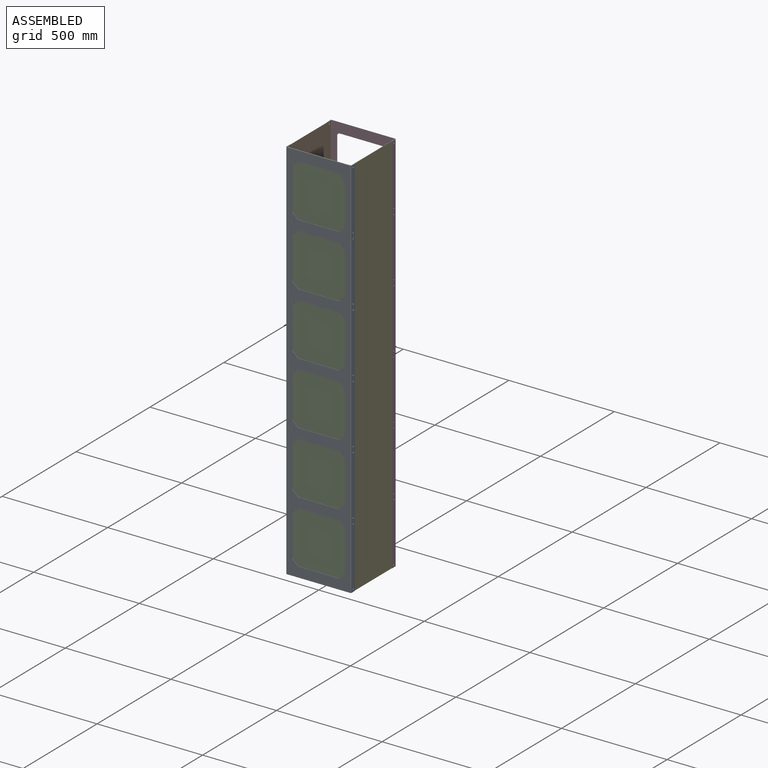
[diagram: assembled view]
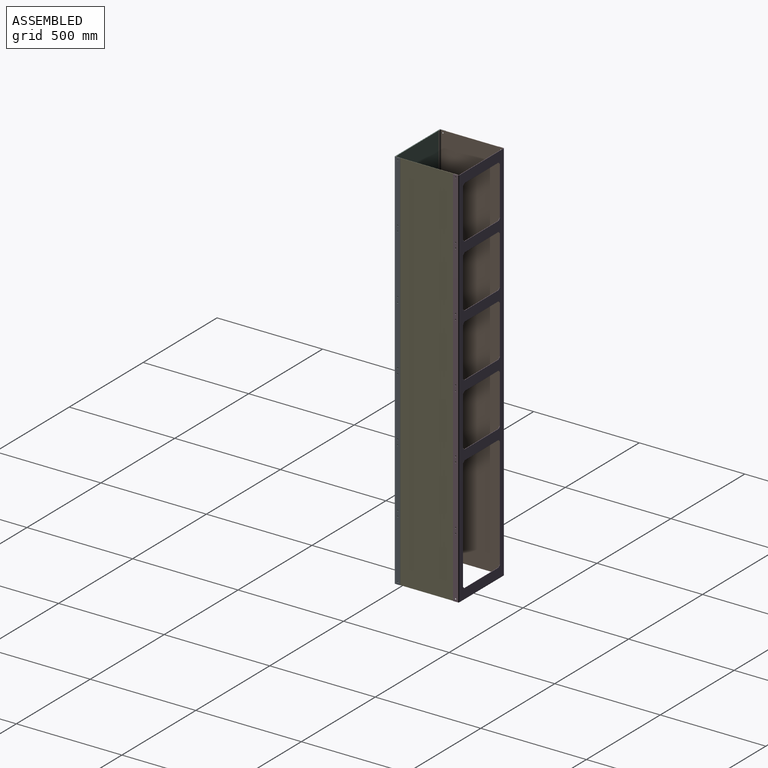
[diagram: assembled view, second angle]
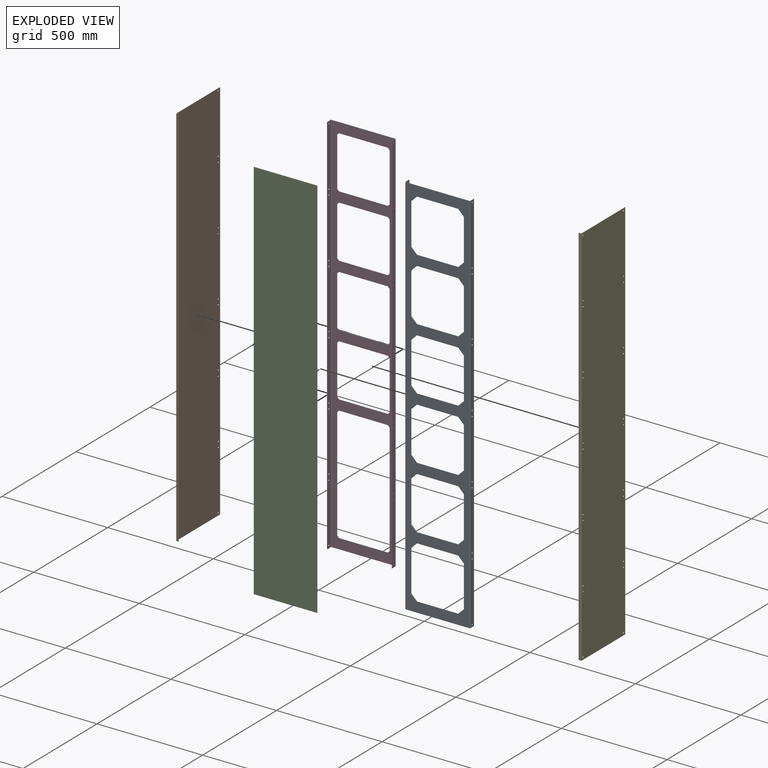
[diagram: exploded view]
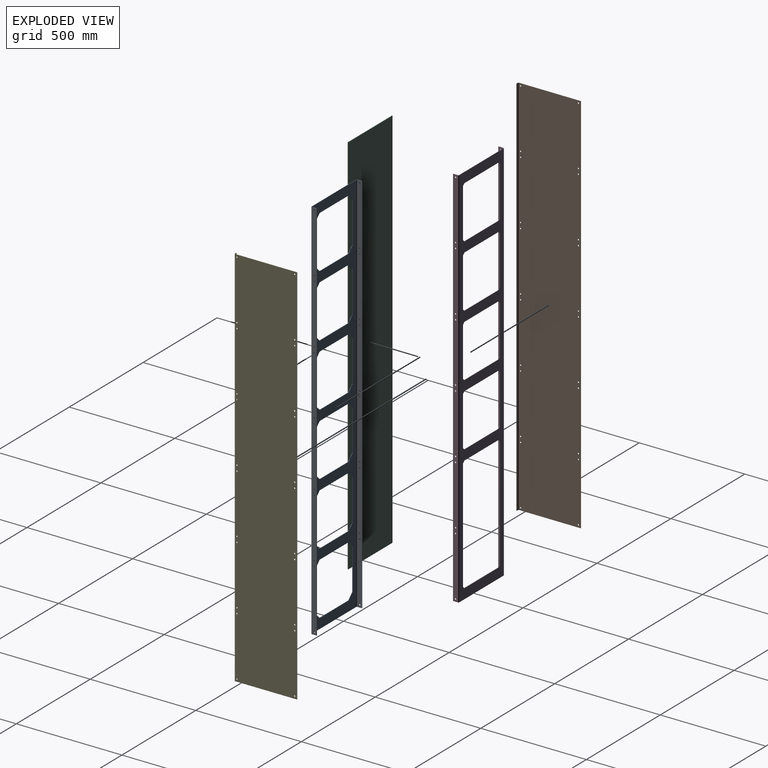
[diagram: exploded view, second angle]
ASSEMBLY  parts=5 mates=8
PART A: 94 faces, bbox 308x27x1828.8 mm
  f0: plane 300.23x1.59mm, normal (0,0,-1), area 476.6mm2, adj f50,f51,f69,f90
  f1: plane 195.55x1.59mm, normal (0,0,-1), area 310.4mm2, adj f2,f48,f50,f51
  f2: plane 26.94x26.94mm, normal (-0.71,0,-0.71), area 60.5mm2, adj f1,f3,f50,f51
  f3: plane 195.55x1.59mm, normal (-1,0,0), area 310.4mm2, adj f2,f4,f50,f51
  f4: plane 26.94x26.94mm, normal (-0.71,0,0.71), area 60.5mm2, adj f3,f5,f50,f51
  f5: plane 195.55x1.59mm, normal (0,0,1), area 310.4mm2, adj f4,f6,f50,f51
  f6: plane 26.94x26.94mm, normal (0.71,0,0.71), area 60.5mm2, adj f5,f7,f50,f51
  f7: plane 195.55x1.59mm, normal (1,0,0), area 310.4mm2, adj f6,f48,f50,f51
  f8: plane 195.55x1.59mm, normal (0,0,-1), area 310.4mm2, adj f9,f47,f50,f51
  f9: plane 26.94x26.94mm, normal (-0.71,0,-0.71), area 60.5mm2, adj f8,f10,f50,f51
  f10: plane 195.55x1.59mm, normal (-1,0,0), area 310.4mm2, adj f9,f11,f50,f51
  f11: plane 26.94x26.94mm, normal (-0.71,0,0.71), area 60.5mm2, adj f10,f12,f50,f51
  f12: plane 195.55x1.59mm, normal (0,0,1), area 310.4mm2, adj f11,f13,f50,f51
  f13: plane 26.94x26.94mm, normal (0.71,0,0.71), area 60.5mm2, adj f12,f14,f50,f51
  f14: plane 195.55x1.59mm, normal (1,0,0), area 310.4mm2, adj f13,f47,f50,f51
  f15: plane 195.55x1.59mm, normal (0,0,-1), area 310.4mm2, adj f16,f46,f50,f51
  f16: plane 26.94x26.94mm, normal (-0.71,0,-0.71), area 60.5mm2, adj f15,f17,f50,f51
  f17: plane 195.55x1.59mm, normal (-1,0,0), area 310.4mm2, adj f16,f18,f50,f51
  f18: plane 26.94x26.94mm, normal (-0.71,0,0.71), area 60.5mm2, adj f17,f19,f50,f51
  f19: plane 195.55x1.59mm, normal (0,0,1), area 310.4mm2, adj f18,f20,f50,f51
  f20: plane 26.94x26.94mm, normal (0.71,0,0.71), area 60.5mm2, adj f19,f21,f50,f51
  f21: plane 195.55x1.59mm, normal (1,0,0), area 310.4mm2, adj f20,f46,f50,f51
  f22: plane 195.55x1.59mm, normal (0,0,-1), area 310.4mm2, adj f23,f45,f50,f51
  f23: plane 26.94x26.94mm, normal (-0.71,0,-0.71), area 60.5mm2, adj f22,f24,f50,f51
  f24: plane 195.55x1.59mm, normal (-1,0,0), area 310.4mm2, adj f23,f25,f50,f51
  f25: plane 26.94x26.94mm, normal (-0.71,0,0.71), area 60.5mm2, adj f24,f26,f50,f51
  f26: plane 195.55x1.59mm, normal (0,0,1), area 310.4mm2, adj f25,f27,f50,f51
  f27: plane 26.94x26.94mm, normal (0.71,0,0.71), area 60.5mm2, adj f26,f28,f50,f51
  f28: plane 195.55x1.59mm, normal (1,0,0), area 310.4mm2, adj f27,f45,f50,f51
  f29: plane 195.55x1.59mm, normal (0,0,-1), area 310.4mm2, adj f30,f44,f50,f51
  f30: plane 26.94x26.94mm, normal (-0.71,0,-0.71), area 60.5mm2, adj f29,f31,f50,f51
  f31: plane 195.55x1.59mm, normal (-1,0,0), area 310.4mm2, adj f30,f32,f50,f51
  f32: plane 26.94x26.94mm, normal (-0.71,0,0.71), area 60.5mm2, adj f31,f33,f50,f51
  f33: plane 195.55x1.59mm, normal (0,0,1), area 310.4mm2, adj f32,f34,f50,f51
  f34: plane 26.94x26.94mm, normal (0.71,0,0.71), area 60.5mm2, adj f33,f35,f50,f51
  f35: plane 195.55x1.59mm, normal (1,0,0), area 310.4mm2, adj f34,f44,f50,f51
  f36: plane 26.94x26.94mm, normal (-0.71,0,-0.71), area 60.5mm2, adj f37,f43,f50,f51
  f37: plane 195.55x1.59mm, normal (-1,0,0), area 310.4mm2, adj f36,f38,f50,f51
  f38: plane 26.94x26.94mm, normal (-0.71,0,0.71), area 60.5mm2, adj f37,f39,f50,f51
  f39: plane 195.55x1.59mm, normal (0,0,1), area 310.4mm2, adj f38,f40,f50,f51
  f40: plane 26.94x26.94mm, normal (0.71,0,0.71), area 60.5mm2, adj f39,f41,f50,f51
  f41: plane 195.55x1.59mm, normal (1,0,0), area 310.4mm2, adj f40,f42,f50,f51
  f42: plane 26.94x26.94mm, normal (0.71,0,-0.71), area 60.5mm2, adj f41,f43,f50,f51
  f43: plane 195.55x1.59mm, normal (0,0,-1), area 310.4mm2, adj f36,f42,f50,f51
  f44: plane 26.94x26.94mm, normal (0.71,0,-0.71), area 60.5mm2, adj f29,f35,f50,f51
  f45: plane 26.94x26.94mm, normal (0.71,0,-0.71), area 60.5mm2, adj f22,f28,f50,f51
  f46: plane 26.94x26.94mm, normal (0.71,0,-0.71), area 60.5mm2, adj f15,f21,f50,f51
  f47: plane 26.94x26.94mm, normal (0.71,0,-0.71), area 60.5mm2, adj f8,f14,f50,f51
  f48: plane 26.94x26.94mm, normal (0.71,0,-0.71), area 60.5mm2, adj f1,f7,f50,f51
  f49: plane 300.23x1.59mm, normal (0,0,1), area 476.6mm2, adj f50,f51,f70,f91
  f50: plane 1828.8x300.23mm, normal (0,-1,0), area 184480.7mm2, adj f0,f1,f2,f3,f4,f5,f6,f7
  f51: plane 1828.8x300.23mm, normal (0,1,0), area 184480.7mm2, adj f0,f1,f2,f3,f4,f5,f6,f7
  f52: plane 23.11x1.59mm, normal (0,0,-1), area 36.7mm2, adj f53,f67,f68,f69
  f53: plane 1828.8x1.59mm, normal (0,1,0), area 2903.2mm2, adj f52,f66,f67,f68
  f54: cylinder r=3.17mm len=6.35mm, axis (1,0,0), area 31.7mm2, adj f67,f68
  f55: cylinder r=3.17mm len=6.35mm, axis (1,0,0), area 31.7mm2, adj f67,f68
  f56: cylinder r=3.17mm len=6.35mm, axis (1,0,0), area 31.7mm2, adj f67,f68
  f57: cylinder r=3.17mm len=6.35mm, axis (1,0,0), area 31.7mm2, adj f67,f68
  f58: cylinder r=3.17mm len=6.35mm, axis (1,0,0), area 31.7mm2, adj f67,f68
  f59: cylinder r=3.17mm len=6.35mm, axis (1,0,0), area 31.7mm2, adj f67,f68
  f60: cylinder r=3.17mm len=6.35mm, axis (1,0,0), area 31.7mm2, adj f67,f68
  f61: cylinder r=3.17mm len=6.35mm, axis (1,0,0), area 31.7mm2, adj f67,f68
  f62: cylinder r=3.17mm len=6.35mm, axis (1,0,0), area 31.7mm2, adj f67,f68
  f63: cylinder r=3.17mm len=6.35mm, axis (1,0,0), area 31.7mm2, adj f67,f68
  f64: cylinder r=3.17mm len=6.35mm, axis (1,0,0), area 31.7mm2, adj f67,f68
  f65: cylinder r=3.17mm len=6.35mm, axis (1,0,0), area 31.7mm2, adj f67,f68
  f66: plane 23.11x1.59mm, normal (0,0,1), area 36.7mm2, adj f53,f67,f68,f70
  f67: plane 1828.8x23.11mm, normal (1,0,0), area 41890.9mm2, adj f52,f53,f54,f55,f56,f57,f58,f59
  f68: plane 1828.8x23.11mm, normal (-1,0,0), area 41890.9mm2, adj f52,f53,f54,f55,f56,f57,f58,f59
  f69: plane 3.87x3.87mm, normal (0,0,-1), area 7.7mm2, adj f0,f52,f71,f72
  f70: plane 3.87x3.87mm, normal (0,0,1), area 7.7mm2, adj f49,f66,f71,f72
  f71: cylinder r=3.87mm len=1828.8mm, axis (0,0,-1), area 11127.3mm2, adj f50,f67,f69,f70
  f72: cylinder r=2.29mm len=1828.8mm, axis (0,0,-1), area 6566.9mm2, adj f51,f68,f69,f70
  f73: plane 23.11x1.59mm, normal (0,0,1), area 36.7mm2, adj f74,f88,f89,f91
  f74: plane 1828.8x1.59mm, normal (0,1,0), area 2903.2mm2, adj f73,f87,f88,f89
  f75: cylinder r=3.17mm len=6.35mm, axis (1,0,0), area 31.7mm2, adj f88,f89
  f76: cylinder r=3.17mm len=6.35mm, axis (1,0,0), area 31.7mm2, adj f88,f89
  f77: cylinder r=3.17mm len=6.35mm, axis (1,0,0), area 31.7mm2, adj f88,f89
  f78: cylinder r=3.17mm len=6.35mm, axis (1,0,0), area 31.7mm2, adj f88,f89
  f79: cylinder r=3.17mm len=6.35mm, axis (1,0,0), area 31.7mm2, adj f88,f89
  f80: cylinder r=3.17mm len=6.35mm, axis (1,0,0), area 31.7mm2, adj f88,f89
  f81: cylinder r=3.17mm len=6.35mm, axis (1,0,0), area 31.7mm2, adj f88,f89
  f82: cylinder r=3.17mm len=6.35mm, axis (1,0,0), area 31.7mm2, adj f88,f89
  f83: cylinder r=3.17mm len=6.35mm, axis (1,0,0), area 31.7mm2, adj f88,f89
  f84: cylinder r=3.17mm len=6.35mm, axis (1,0,0), area 31.7mm2, adj f88,f89
  f85: cylinder r=3.17mm len=6.35mm, axis (1,0,0), area 31.7mm2, adj f88,f89
  f86: cylinder r=3.17mm len=6.35mm, axis (1,0,0), area 31.7mm2, adj f88,f89
  f87: plane 23.11x1.59mm, normal (0,0,-1), area 36.7mm2, adj f74,f88,f89,f90
  f88: plane 1828.8x23.11mm, normal (-1,0,0), area 41890.9mm2, adj f73,f74,f75,f76,f77,f78,f79,f80
  f89: plane 1828.8x23.11mm, normal (1,0,0), area 41890.9mm2, adj f73,f74,f75,f76,f77,f78,f79,f80
  f90: plane 3.87x3.87mm, normal (0,0,-1), area 7.7mm2, adj f0,f87,f92,f93
  f91: plane 3.87x3.87mm, normal (0,0,1), area 7.7mm2, adj f49,f73,f92,f93
  f92: cylinder r=3.87mm len=1828.8mm, axis (0,0,-1), area 11127.3mm2, adj f50,f88,f90,f91
  f93: cylinder r=2.29mm len=1828.8mm, axis (0,0,-1), area 6566.9mm2, adj f51,f89,f90,f91
PART B: 38 faces, bbox 297.1x12.7x1828.8 mm
  f0: plane 293.18x1.59mm, normal (0,0,-1), area 465.4mm2, adj f26,f27,f28,f34
  f1: plane 293.18x1.59mm, normal (0,0,1), area 465.4mm2, adj f26,f27,f28,f35
  f2: cylinder r=3.17mm len=6.35mm, axis (0,-1,0), area 31.7mm2, adj f27,f28
  f3: cylinder r=3.17mm len=6.35mm, axis (0,-1,0), area 31.7mm2, adj f27,f28
  f4: cylinder r=3.17mm len=6.35mm, axis (0,-1,0), area 31.7mm2, adj f27,f28
  f5: cylinder r=3.17mm len=6.35mm, axis (0,-1,0), area 31.7mm2, adj f27,f28
  f6: cylinder r=3.17mm len=6.35mm, axis (0,-1,0), area 31.7mm2, adj f27,f28
  f7: cylinder r=3.17mm len=6.35mm, axis (0,-1,0), area 31.7mm2, adj f27,f28
  f8: cylinder r=3.17mm len=6.35mm, axis (0,-1,0), area 31.7mm2, adj f27,f28
  f9: cylinder r=3.17mm len=6.35mm, axis (0,-1,0), area 31.7mm2, adj f27,f28
  f10: cylinder r=3.17mm len=6.35mm, axis (0,-1,0), area 31.7mm2, adj f27,f28
  f11: cylinder r=3.17mm len=6.35mm, axis (0,-1,0), area 31.7mm2, adj f27,f28
  f12: cylinder r=3.17mm len=6.35mm, axis (0,-1,0), area 31.7mm2, adj f27,f28
  f13: cylinder r=3.17mm len=6.35mm, axis (0,-1,0), area 31.7mm2, adj f27,f28
  f14: cylinder r=3.17mm len=6.35mm, axis (0,-1,0), area 31.7mm2, adj f27,f28
  f15: cylinder r=3.17mm len=6.35mm, axis (0,-1,0), area 31.7mm2, adj f27,f28
  f16: cylinder r=3.17mm len=6.35mm, axis (0,-1,0), area 31.7mm2, adj f27,f28
  f17: cylinder r=3.17mm len=6.35mm, axis (0,-1,0), area 31.7mm2, adj f27,f28
  f18: cylinder r=3.17mm len=6.35mm, axis (0,-1,0), area 31.7mm2, adj f27,f28
  f19: cylinder r=3.17mm len=6.35mm, axis (0,-1,0), area 31.7mm2, adj f27,f28
  f20: cylinder r=3.17mm len=6.35mm, axis (0,-1,0), area 31.7mm2, adj f27,f28
  f21: cylinder r=3.17mm len=6.35mm, axis (0,-1,0), area 31.7mm2, adj f27,f28
  f22: cylinder r=3.17mm len=6.35mm, axis (0,-1,0), area 31.7mm2, adj f27,f28
  f23: cylinder r=3.17mm len=6.35mm, axis (0,-1,0), area 31.7mm2, adj f27,f28
  f24: cylinder r=3.17mm len=6.35mm, axis (0,-1,0), area 31.7mm2, adj f27,f28
  f25: cylinder r=3.17mm len=6.35mm, axis (0,-1,0), area 31.7mm2, adj f27,f28
  f26: plane 1828.8x1.59mm, normal (1,0,0), area 2903.2mm2, adj f0,f1,f27,f28
  f27: plane 1828.8x293.18mm, normal (0,1,0), area 535406.6mm2, adj f0,f1,f2,f3,f4,f5,f6,f7
  f28: plane 1828.8x293.18mm, normal (0,-1,0), area 535406.6mm2, adj f0,f1,f2,f3,f4,f5,f6,f7
  f29: plane 1828.8x1.59mm, normal (0,-1,0), area 2903.2mm2, adj f30,f31,f32,f33
  f30: plane 8.83x1.59mm, normal (0,0,1), area 14mm2, adj f29,f32,f33,f35
  f31: plane 8.83x1.59mm, normal (0,0,-1), area 14mm2, adj f29,f32,f33,f34
  f32: plane 1828.8x8.83mm, normal (-1,0,0), area 16141.9mm2, adj f29,f30,f31,f36
  f33: plane 1828.8x8.83mm, normal (1,0,0), area 16141.9mm2, adj f29,f30,f31,f37
  f34: plane 3.87x3.87mm, normal (0,0,-1), area 7.7mm2, adj f0,f31,f36,f37
  f35: plane 3.87x3.87mm, normal (0,0,1), area 7.7mm2, adj f1,f30,f36,f37
  f36: cylinder r=3.87mm len=1828.8mm, axis (0,0,-1), area 11127.3mm2, adj f27,f32,f34,f35
  f37: cylinder r=2.29mm len=1828.8mm, axis (0,0,-1), area 6566.9mm2, adj f28,f33,f34,f35
PART C: 10 faces, bbox 2.5x300.2x1828.8 mm
  f0: plane 300.23x2.54mm, normal (0,0,1), area 757.3mm2, adj f1,f3,f4,f5,f6,f7,f8,f9
  f1: plane 1828.8x2.29mm, normal (0,-1,0), area 4180.6mm2, adj f0,f2,f5,f9
  f2: plane 300.23x2.54mm, normal (0,0,-1), area 757.3mm2, adj f1,f3,f4,f5,f6,f7,f8,f9
  f3: plane 1828.8x2.29mm, normal (0,1,0), area 4180.6mm2, adj f0,f2,f5,f7
  f4: plane 1828.8x279.4mm, normal (1,0,0), area 510966.7mm2, adj f0,f2,f6,f8
  f5: plane 1828.8x300.23mm, normal (-1,0,0), area 549057mm2, adj f0,f1,f2,f3
  f6: plane 1828.8x0.25mm, normal (0,1,0), area 464.5mm2, adj f0,f2,f4,f7
  f7: plane 1828.8x10.41mm, normal (1,0,0), area 19045.1mm2, adj f0,f2,f3,f6
  f8: plane 1828.8x0.25mm, normal (0,-1,0), area 464.5mm2, adj f0,f2,f4,f9
  f9: plane 1828.8x10.41mm, normal (1,0,0), area 19045.1mm2, adj f0,f1,f2,f8
PART D: 86 faces, bbox 308x27x1828.8 mm
  f0: plane 231.47x1.59mm, normal (0,0,-1), area 367.5mm2, adj f1,f41,f42,f43
  f1: plane 8.98x8.98mm, normal (-0.71,0,-0.71), area 20.2mm2, adj f0,f2,f42,f43
  f2: plane 528.36x1.59mm, normal (-1,0,0), area 838.8mm2, adj f1,f3,f42,f43
  f3: plane 8.98x8.98mm, normal (-0.71,0,0.71), area 20.2mm2, adj f2,f4,f42,f43
  f4: plane 231.47x1.59mm, normal (0,0,1), area 367.5mm2, adj f3,f5,f42,f43
  f5: plane 8.98x8.98mm, normal (0.71,0,0.71), area 20.2mm2, adj f4,f6,f42,f43
  f6: plane 528.36x1.59mm, normal (1,0,0), area 838.8mm2, adj f5,f41,f42,f43
  f7: plane 300.23x1.59mm, normal (0,0,-1), area 476.6mm2, adj f42,f43,f61,f82
  f8: plane 231.47x1.59mm, normal (0,0,-1), area 367.5mm2, adj f9,f39,f42,f43
  f9: plane 8.98x8.98mm, normal (-0.71,0,-0.71), area 20.2mm2, adj f8,f10,f42,f43
  f10: plane 231.47x1.59mm, normal (-1,0,0), area 367.5mm2, adj f9,f11,f42,f43
  f11: plane 8.98x8.98mm, normal (-0.71,0,0.71), area 20.2mm2, adj f10,f12,f42,f43
  f12: plane 231.47x1.59mm, normal (0,0,1), area 367.5mm2, adj f11,f13,f42,f43
  f13: plane 8.98x8.98mm, normal (0.71,0,0.71), area 20.2mm2, adj f12,f14,f42,f43
  f14: plane 231.47x1.59mm, normal (1,0,0), area 367.5mm2, adj f13,f39,f42,f43
  f15: plane 231.47x1.59mm, normal (0,0,-1), area 367.5mm2, adj f16,f38,f42,f43
  f16: plane 8.98x8.98mm, normal (-0.71,0,-0.71), area 20.2mm2, adj f15,f17,f42,f43
  f17: plane 231.47x1.59mm, normal (-1,0,0), area 367.5mm2, adj f16,f18,f42,f43
  f18: plane 8.98x8.98mm, normal (-0.71,0,0.71), area 20.2mm2, adj f17,f19,f42,f43
  f19: plane 231.47x1.59mm, normal (0,0,1), area 367.5mm2, adj f18,f20,f42,f43
  f20: plane 8.98x8.98mm, normal (0.71,0,0.71), area 20.2mm2, adj f19,f21,f42,f43
  f21: plane 231.47x1.59mm, normal (1,0,0), area 367.5mm2, adj f20,f38,f42,f43
  f22: plane 231.47x1.59mm, normal (0,0,-1), area 367.5mm2, adj f23,f37,f42,f43
  f23: plane 8.98x8.98mm, normal (-0.71,0,-0.71), area 20.2mm2, adj f22,f24,f42,f43
  f24: plane 231.47x1.59mm, normal (-1,0,0), area 367.5mm2, adj f23,f25,f42,f43
  f25: plane 8.98x8.98mm, normal (-0.71,0,0.71), area 20.2mm2, adj f24,f26,f42,f43
  f26: plane 231.47x1.59mm, normal (0,0,1), area 367.5mm2, adj f25,f27,f42,f43
  f27: plane 8.98x8.98mm, normal (0.71,0,0.71), area 20.2mm2, adj f26,f28,f42,f43
  f28: plane 231.47x1.59mm, normal (1,0,0), area 367.5mm2, adj f27,f37,f42,f43
  f29: plane 8.98x8.98mm, normal (-0.71,0,-0.71), area 20.2mm2, adj f30,f36,f42,f43
  f30: plane 231.47x1.59mm, normal (-1,0,0), area 367.5mm2, adj f29,f31,f42,f43
  f31: plane 8.98x8.98mm, normal (-0.71,0,0.71), area 20.2mm2, adj f30,f32,f42,f43
  f32: plane 231.47x1.59mm, normal (0,0,1), area 367.5mm2, adj f31,f33,f42,f43
  f33: plane 8.98x8.98mm, normal (0.71,0,0.71), area 20.2mm2, adj f32,f34,f42,f43
  f34: plane 231.47x1.59mm, normal (1,0,0), area 367.5mm2, adj f33,f35,f42,f43
  f35: plane 8.98x8.98mm, normal (0.71,0,-0.71), area 20.2mm2, adj f34,f36,f42,f43
  f36: plane 231.47x1.59mm, normal (0,0,-1), area 367.5mm2, adj f29,f35,f42,f43
  f37: plane 8.98x8.98mm, normal (0.71,0,-0.71), area 20.2mm2, adj f22,f28,f42,f43
  f38: plane 8.98x8.98mm, normal (0.71,0,-0.71), area 20.2mm2, adj f15,f21,f42,f43
  f39: plane 8.98x8.98mm, normal (0.71,0,-0.71), area 20.2mm2, adj f8,f14,f42,f43
  f40: plane 300.23x1.59mm, normal (0,0,1), area 476.6mm2, adj f42,f43,f62,f83
  f41: plane 8.98x8.98mm, normal (0.71,0,-0.71), area 20.2mm2, adj f0,f6,f42,f43
  f42: plane 1828.8x300.23mm, normal (0,-1,0), area 164739.2mm2, adj f0,f1,f2,f3,f4,f5,f6,f7
  f43: plane 1828.8x300.23mm, normal (0,1,0), area 164739.2mm2, adj f0,f1,f2,f3,f4,f5,f6,f7
  f44: plane 23.11x1.59mm, normal (0,0,-1), area 36.7mm2, adj f45,f59,f60,f61
  f45: plane 1828.8x1.59mm, normal (0,1,0), area 2903.2mm2, adj f44,f58,f59,f60
  f46: cylinder r=3.17mm len=6.35mm, axis (1,0,0), area 31.7mm2, adj f59,f60
  f47: cylinder r=3.17mm len=6.35mm, axis (1,0,0), area 31.7mm2, adj f59,f60
  f48: cylinder r=3.17mm len=6.35mm, axis (1,0,0), area 31.7mm2, adj f59,f60
  f49: cylinder r=3.17mm len=6.35mm, axis (1,0,0), area 31.7mm2, adj f59,f60
  f50: cylinder r=3.17mm len=6.35mm, axis (1,0,0), area 31.7mm2, adj f59,f60
  f51: cylinder r=3.17mm len=6.35mm, axis (1,0,0), area 31.7mm2, adj f59,f60
  f52: cylinder r=3.17mm len=6.35mm, axis (1,0,0), area 31.7mm2, adj f59,f60
  f53: cylinder r=3.17mm len=6.35mm, axis (1,0,0), area 31.7mm2, adj f59,f60
  f54: cylinder r=3.17mm len=6.35mm, axis (1,0,0), area 31.7mm2, adj f59,f60
  f55: cylinder r=3.17mm len=6.35mm, axis (1,0,0), area 31.7mm2, adj f59,f60
  f56: cylinder r=3.17mm len=6.35mm, axis (1,0,0), area 31.7mm2, adj f59,f60
  f57: cylinder r=3.17mm len=6.35mm, axis (1,0,0), area 31.7mm2, adj f59,f60
  f58: plane 23.11x1.59mm, normal (0,0,1), area 36.7mm2, adj f45,f59,f60,f62
  f59: plane 1828.8x23.11mm, normal (1,0,0), area 41890.9mm2, adj f44,f45,f46,f47,f48,f49,f50,f51
  f60: plane 1828.8x23.11mm, normal (-1,0,0), area 41890.9mm2, adj f44,f45,f46,f47,f48,f49,f50,f51
  f61: plane 3.87x3.87mm, normal (0,0,-1), area 7.7mm2, adj f7,f44,f63,f64
  f62: plane 3.87x3.87mm, normal (0,0,1), area 7.7mm2, adj f40,f58,f63,f64
  f63: cylinder r=3.87mm len=1828.8mm, axis (0,0,-1), area 11127.3mm2, adj f42,f59,f61,f62
  f64: cylinder r=2.29mm len=1828.8mm, axis (0,0,-1), area 6566.9mm2, adj f43,f60,f61,f62
  f65: plane 23.11x1.59mm, normal (0,0,1), area 36.7mm2, adj f66,f80,f81,f83
  f66: plane 1828.8x1.59mm, normal (0,1,0), area 2903.2mm2, adj f65,f79,f80,f81
  f67: cylinder r=3.17mm len=6.35mm, axis (1,0,0), area 31.7mm2, adj f80,f81
  f68: cylinder r=3.17mm len=6.35mm, axis (1,0,0), area 31.7mm2, adj f80,f81
  f69: cylinder r=3.17mm len=6.35mm, axis (1,0,0), area 31.7mm2, adj f80,f81
  f70: cylinder r=3.17mm len=6.35mm, axis (1,0,0), area 31.7mm2, adj f80,f81
  f71: cylinder r=3.17mm len=6.35mm, axis (1,0,0), area 31.7mm2, adj f80,f81
  f72: cylinder r=3.17mm len=6.35mm, axis (1,0,0), area 31.7mm2, adj f80,f81
  f73: cylinder r=3.17mm len=6.35mm, axis (1,0,0), area 31.7mm2, adj f80,f81
  f74: cylinder r=3.17mm len=6.35mm, axis (1,0,0), area 31.7mm2, adj f80,f81
  f75: cylinder r=3.17mm len=6.35mm, axis (1,0,0), area 31.7mm2, adj f80,f81
  f76: cylinder r=3.17mm len=6.35mm, axis (1,0,0), area 31.7mm2, adj f80,f81
  f77: cylinder r=3.17mm len=6.35mm, axis (1,0,0), area 31.7mm2, adj f80,f81
  f78: cylinder r=3.17mm len=6.35mm, axis (1,0,0), area 31.7mm2, adj f80,f81
  f79: plane 23.11x1.59mm, normal (0,0,-1), area 36.7mm2, adj f66,f80,f81,f82
  f80: plane 1828.8x23.11mm, normal (-1,0,0), area 41890.9mm2, adj f65,f66,f67,f68,f69,f70,f71,f72
  f81: plane 1828.8x23.11mm, normal (1,0,0), area 41890.9mm2, adj f65,f66,f67,f68,f69,f70,f71,f72
  f82: plane 3.87x3.87mm, normal (0,0,-1), area 7.7mm2, adj f7,f79,f84,f85
  f83: plane 3.87x3.87mm, normal (0,0,1), area 7.7mm2, adj f40,f65,f84,f85
  f84: cylinder r=3.87mm len=1828.8mm, axis (0,0,-1), area 11127.3mm2, adj f42,f80,f82,f83
  f85: cylinder r=2.29mm len=1828.8mm, axis (0,0,-1), area 6566.9mm2, adj f43,f81,f82,f83
PART E: 38 faces, bbox 297.1x12.7x1828.8 mm
  f0: plane 293.18x1.59mm, normal (0,0,-1), area 465.4mm2, adj f1,f27,f28,f35
  f1: plane 1828.8x1.59mm, normal (-1,0,0), area 2903.2mm2, adj f0,f2,f27,f28
  f2: plane 293.18x1.59mm, normal (0,0,1), area 465.4mm2, adj f1,f27,f28,f34
  f3: cylinder r=3.17mm len=6.35mm, axis (0,-1,0), area 31.7mm2, adj f27,f28
  f4: cylinder r=3.17mm len=6.35mm, axis (0,-1,0), area 31.7mm2, adj f27,f28
  f5: cylinder r=3.17mm len=6.35mm, axis (0,-1,0), area 31.7mm2, adj f27,f28
  f6: cylinder r=3.17mm len=6.35mm, axis (0,-1,0), area 31.7mm2, adj f27,f28
  f7: cylinder r=3.17mm len=6.35mm, axis (0,-1,0), area 31.7mm2, adj f27,f28
  f8: cylinder r=3.17mm len=6.35mm, axis (0,-1,0), area 31.7mm2, adj f27,f28
  f9: cylinder r=3.17mm len=6.35mm, axis (0,-1,0), area 31.7mm2, adj f27,f28
  f10: cylinder r=3.17mm len=6.35mm, axis (0,-1,0), area 31.7mm2, adj f27,f28
  f11: cylinder r=3.17mm len=6.35mm, axis (0,-1,0), area 31.7mm2, adj f27,f28
  f12: cylinder r=3.17mm len=6.35mm, axis (0,-1,0), area 31.7mm2, adj f27,f28
  f13: cylinder r=3.17mm len=6.35mm, axis (0,-1,0), area 31.7mm2, adj f27,f28
  f14: cylinder r=3.17mm len=6.35mm, axis (0,-1,0), area 31.7mm2, adj f27,f28
  f15: cylinder r=3.17mm len=6.35mm, axis (0,-1,0), area 31.7mm2, adj f27,f28
  f16: cylinder r=3.17mm len=6.35mm, axis (0,-1,0), area 31.7mm2, adj f27,f28
  f17: cylinder r=3.17mm len=6.35mm, axis (0,-1,0), area 31.7mm2, adj f27,f28
  f18: cylinder r=3.17mm len=6.35mm, axis (0,-1,0), area 31.7mm2, adj f27,f28
  f19: cylinder r=3.17mm len=6.35mm, axis (0,-1,0), area 31.7mm2, adj f27,f28
  f20: cylinder r=3.17mm len=6.35mm, axis (0,-1,0), area 31.7mm2, adj f27,f28
  f21: cylinder r=3.17mm len=6.35mm, axis (0,-1,0), area 31.7mm2, adj f27,f28
  f22: cylinder r=3.17mm len=6.35mm, axis (0,-1,0), area 31.7mm2, adj f27,f28
  f23: cylinder r=3.17mm len=6.35mm, axis (0,-1,0), area 31.7mm2, adj f27,f28
  f24: cylinder r=3.17mm len=6.35mm, axis (0,-1,0), area 31.7mm2, adj f27,f28
  f25: cylinder r=3.17mm len=6.35mm, axis (0,-1,0), area 31.7mm2, adj f27,f28
  f26: cylinder r=3.17mm len=6.35mm, axis (0,-1,0), area 31.7mm2, adj f27,f28
  f27: plane 1828.8x293.18mm, normal (0,1,0), area 535406.6mm2, adj f0,f1,f2,f3,f4,f5,f6,f7
  f28: plane 1828.8x293.18mm, normal (0,-1,0), area 535406.6mm2, adj f0,f1,f2,f3,f4,f5,f6,f7
  f29: plane 1828.8x1.59mm, normal (0,-1,0), area 2903.2mm2, adj f30,f31,f32,f33
  f30: plane 8.83x1.59mm, normal (0,0,-1), area 14mm2, adj f29,f32,f33,f35
  f31: plane 8.83x1.59mm, normal (0,0,1), area 14mm2, adj f29,f32,f33,f34
  f32: plane 1828.8x8.83mm, normal (1,0,0), area 16141.9mm2, adj f29,f30,f31,f36
  f33: plane 1828.8x8.83mm, normal (-1,0,0), area 16141.9mm2, adj f29,f30,f31,f37
  f34: plane 3.87x3.87mm, normal (0,0,1), area 7.7mm2, adj f2,f31,f36,f37
  f35: plane 3.87x3.87mm, normal (0,0,-1), area 7.7mm2, adj f0,f30,f36,f37
  f36: cylinder r=3.87mm len=1828.8mm, axis (0,0,1), area 11127.3mm2, adj f27,f32,f34,f35
  f37: cylinder r=2.29mm len=1828.8mm, axis (0,0,1), area 6566.9mm2, adj f28,f33,f34,f35
PLACE A t=(0,25.4,0)mm
PLACE B rot(axis=(0,0,1),90deg) t=(-150.81,150.81,0)mm
PLACE C rot(axis=(-0.71,-0.71,0),180deg) t=(0,0,0)mm
PLACE D rot(axis=(0,0,-1),180deg) t=(0,276.23,0)mm
PLACE E rot(axis=(0,0,-1),90deg) t=(150.81,150.81,0)mm
MATE fastened A.f51 <-> C.f5  axis (0,1,0) through (0,0,0)mm
MATE fastened D.f67 <-> B.f19  axis (1,0,0) through (-152.4,287.78,902.84)mm
MATE planar A.f89 <-> B.f27  axis (1,0,0) through (-152.4,13.84,0)mm
MATE cylindrical B.f25 <-> A.f75  axis (1,0,0) through (-150.81,13.84,902.84)mm
MATE cylindrical E.f6 <-> A.f61  axis (1,0,0) through (152.4,13.84,-902.84)mm
MATE cylindrical B.f13 <-> A.f61  axis (-1,0,0) through (-152.4,13.84,-902.84)mm
MATE planar E.f27 <-> A.f68  axis (1,0,0) through (152.4,152.75,0)mm
MATE cylindrical E.f20 <-> A.f75  axis (1,0,0) through (152.4,13.84,902.84)mm
